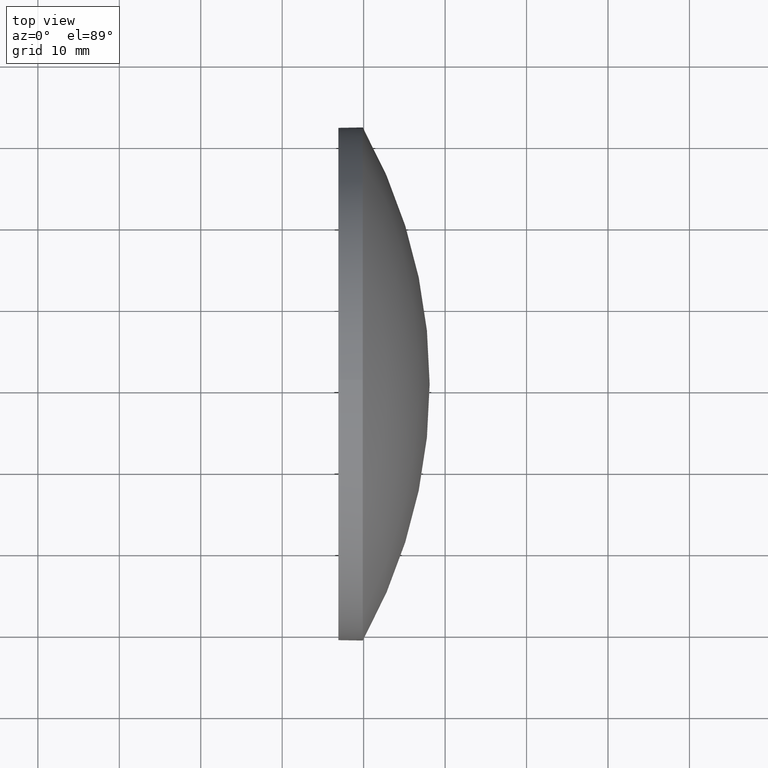
[diagram: clean part render]
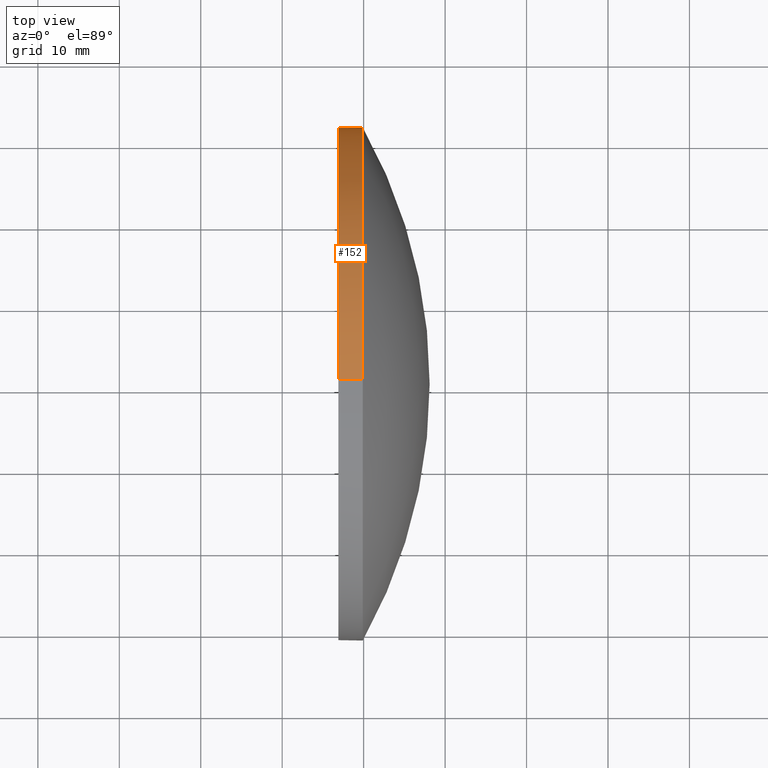
[diagram: same view with one face highlighted and labeled with its STEP entity id]
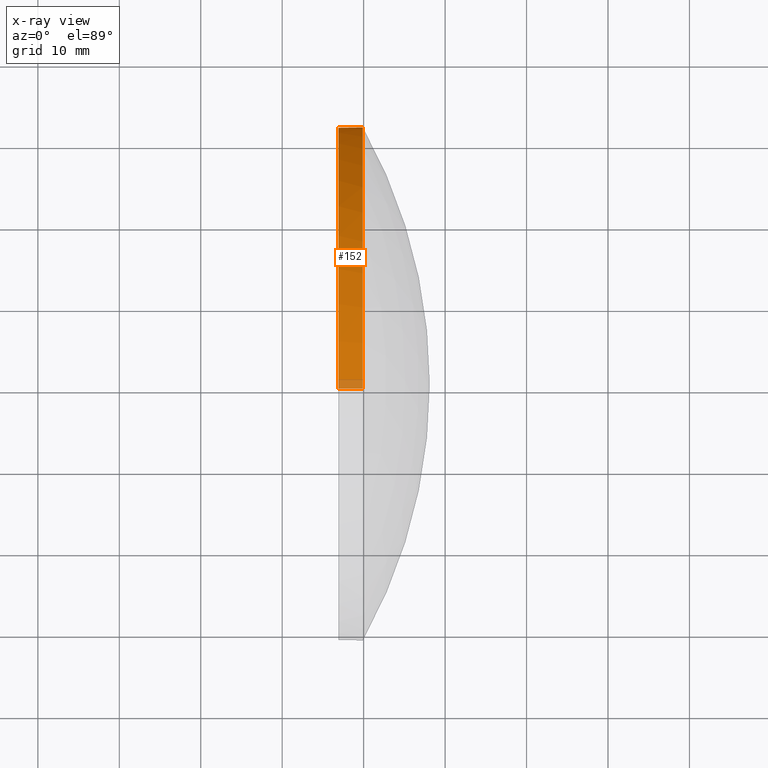
[diagram: x-ray of the same camera — body ghosted, the highlighted face saturated]
A machine part, top view. The second image highlights one B-rep face of the part: STEP entity #152.
The next image is the same camera in x-ray: the body ghosted, the highlighted face saturated — about 3% of this face is hidden behind the body in this view.
In plain terms, the highlighted cylindrical surface (partial cylindrical patch) has radius 31.5 mm, axis along (-1, -0, -0).
Its self-contained STEP definition (entity closure, byte-faithful):
#4 = CYLINDRICAL_SURFACE ( 'NONE', #89, 31.50000000000000000 ) ;
#11 = VERTEX_POINT ( 'NONE', #133 ) ;
#13 = VECTOR ( 'NONE', #95, 1000.000000000000000 ) ;
#14 = FACE_OUTER_BOUND ( 'NONE', #41, .T. ) ;
#17 = CIRCLE ( 'NONE', #160, 31.50000000000000000 ) ;
#19 = VERTEX_POINT ( 'NONE', #174 ) ;
#20 = LINE ( 'NONE', #83, #129 ) ;
#22 = DIRECTION ( 'NONE',  ( -1.000000000000000000, -0.0000000000000000000, -0.0000000000000000000 ) ) ;
#27 = ORIENTED_EDGE ( 'NONE', *, *, #92, .F. ) ;
#31 = CARTESIAN_POINT ( 'NONE',  ( 226.8933010013870400, 130.5185814569561000, 0.0000000000000000000 ) ) ;
#41 = EDGE_LOOP ( 'NONE', ( #102, #122, #27, #116, #108 ) ) ;
#61 = EDGE_CURVE ( 'NONE', #138, #73, #176, .T. ) ;
#67 = CARTESIAN_POINT ( 'NONE',  ( 229.8933010013870400, 162.0185814569560700, 0.0000000000000000000 ) ) ;
#69 = CARTESIAN_POINT ( 'NONE',  ( 218.1236667371545400, 130.5185814569561000, 0.0000000000000000000 ) ) ;
#70 = DIRECTION ( 'NONE',  ( -1.000000000000000000, -0.0000000000000000000, -0.0000000000000000000 ) ) ;
#73 = VERTEX_POINT ( 'NONE', #114 ) ;
#74 = AXIS2_PLACEMENT_3D ( 'NONE', #162, #179, #96 ) ;
#75 = VERTEX_POINT ( 'NONE', #67 ) ;
#83 = CARTESIAN_POINT ( 'NONE',  ( 218.1236667371545400, 130.5185814569561000, 31.50000000000000000 ) ) ;
#89 = AXIS2_PLACEMENT_3D ( 'NONE', #69, #164, #134 ) ;
#92 = EDGE_CURVE ( 'NONE', #19, #73, #172, .T. ) ;
#95 = DIRECTION ( 'NONE',  ( -1.000000000000000000, -0.0000000000000000000, -0.0000000000000000000 ) ) ;
#96 = DIRECTION ( 'NONE',  ( 0.0000000000000000000, 0.0000000000000000000, 1.000000000000000000 ) ) ;
#99 = CIRCLE ( 'NONE', #74, 31.50000000000000000 ) ;
#101 = EDGE_CURVE ( 'NONE', #11, #75, #99, .T. ) ;
#102 = ORIENTED_EDGE ( 'NONE', *, *, #171, .T. ) ;
#108 = ORIENTED_EDGE ( 'NONE', *, *, #101, .T. ) ;
#114 = CARTESIAN_POINT ( 'NONE',  ( 226.8933010013870400, 130.5185814569561000, -31.50000000000000000 ) ) ;
#115 = DIRECTION ( 'NONE',  ( 0.0000000000000000000, 0.0000000000000000000, 1.000000000000000000 ) ) ;
#116 = ORIENTED_EDGE ( 'NONE', *, *, #155, .F. ) ;
#122 = ORIENTED_EDGE ( 'NONE', *, *, #61, .T. ) ;
#125 = AXIS2_PLACEMENT_3D ( 'NONE', #31, #22, #115 ) ;
#129 = VECTOR ( 'NONE', #137, 1000.000000000000000 ) ;
#133 = CARTESIAN_POINT ( 'NONE',  ( 229.8933010013870400, 130.5185814569561000, 31.50000000000000000 ) ) ;
#134 = DIRECTION ( 'NONE',  ( 0.0000000000000000000, 0.0000000000000000000, 1.000000000000000000 ) ) ;
#137 = DIRECTION ( 'NONE',  ( -1.000000000000000000, -0.0000000000000000000, -0.0000000000000000000 ) ) ;
#138 = VERTEX_POINT ( 'NONE', #177 ) ;
#147 = CARTESIAN_POINT ( 'NONE',  ( 229.8933010013870400, 130.5185814569561000, 0.0000000000000000000 ) ) ;
#152 = ADVANCED_FACE ( 'NONE', ( #14 ), #4, .T. ) ;
#155 = EDGE_CURVE ( 'NONE', #11, #19, #20, .T. ) ;
#160 = AXIS2_PLACEMENT_3D ( 'NONE', #147, #70, #165 ) ;
#162 = CARTESIAN_POINT ( 'NONE',  ( 229.8933010013870400, 130.5185814569561000, 0.0000000000000000000 ) ) ;
#164 = DIRECTION ( 'NONE',  ( -1.000000000000000000, -0.0000000000000000000, -0.0000000000000000000 ) ) ;
#165 = DIRECTION ( 'NONE',  ( 0.0000000000000000000, 0.0000000000000000000, 1.000000000000000000 ) ) ;
#171 = EDGE_CURVE ( 'NONE', #75, #138, #17, .T. ) ;
#172 = CIRCLE ( 'NONE', #125, 31.50000000000000000 ) ;
#174 = CARTESIAN_POINT ( 'NONE',  ( 226.8933010013870400, 130.5185814569561000, 31.50000000000000000 ) ) ;
#175 = CARTESIAN_POINT ( 'NONE',  ( 218.1236667371545400, 130.5185814569561000, -31.50000000000000000 ) ) ;
#176 = LINE ( 'NONE', #175, #13 ) ;
#177 = CARTESIAN_POINT ( 'NONE',  ( 229.8933010013870400, 130.5185814569561000, -31.50000000000000000 ) ) ;
#179 = DIRECTION ( 'NONE',  ( -1.000000000000000000, -0.0000000000000000000, -0.0000000000000000000 ) ) ;